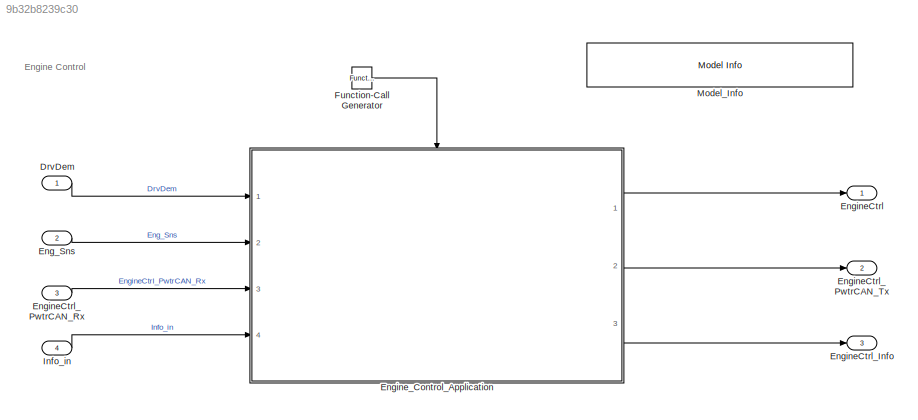
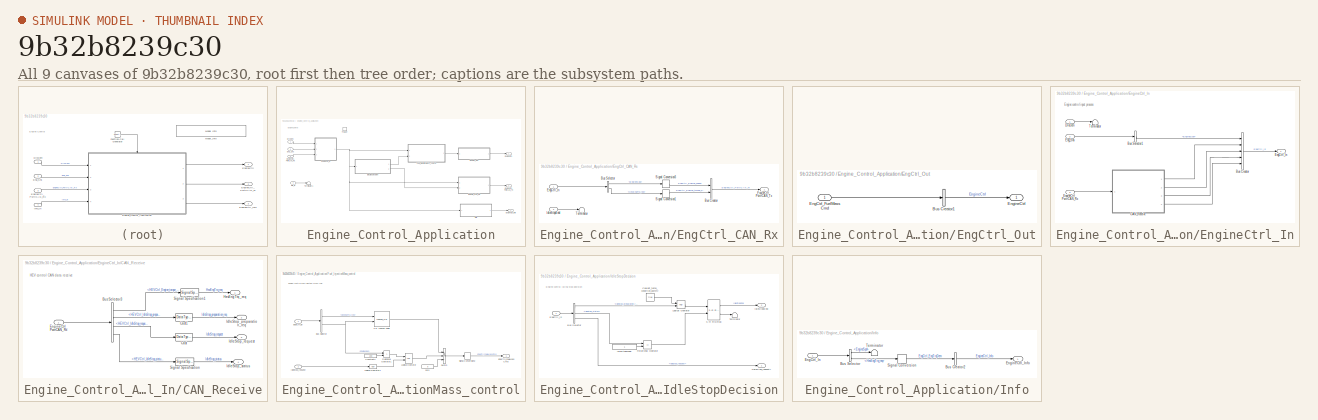
[diagram: thumbnail index - all 9 canvases of the model, root first then tree order]
MODEL slx_9b32b8239c30
KIND model
CONFIG PreLoadFcn = EngineCtrl_V1_BusInfo
BLOCK [Inport] DrvDem
  AttributesFormatString = %<OutDataTypeStr>
  IconDisplay = Port number
  OutDataTypeStr = Bus: Driver_demand_Bus
BLOCK [Inport] Eng_Sns
  AttributesFormatString = %<OutDataTypeStr>
  IconDisplay = Port number
  OutDataTypeStr = Bus: Engine_sensor_Bus
  Port = 2
BLOCK [Outport] EngineCtrl
  AttributesFormatString = <%<OutDataTypeStr>>
  IconDisplay = Port number
  OutDataTypeStr = Bus: EngineCtrl_Bus
BLOCK [Outport] EngineCtrl_Info
  AttributesFormatString = <%<OutDataTypeStr>>
  IconDisplay = Port number
  OutDataTypeStr = Bus: EngineCtrl_Info_Bus
  Port = 3
BLOCK [Inport] EngineCtrl_PwtrCAN_Rx
  AttributesFormatString = <%<OutDataTypeStr>>
  IconDisplay = Port number
  OutDataTypeStr = Bus: EngineCtrl_PwtrCAN_Rx_Bus
  Port = 3
BLOCK [Outport] EngineCtrl_PwtrCAN_Tx
  AttributesFormatString = <%<OutDataTypeStr>>
  IconDisplay = Port number
  OutDataTypeStr = Bus: EngineCtrl_PwtrCAN_Tx_Bus
  Port = 2
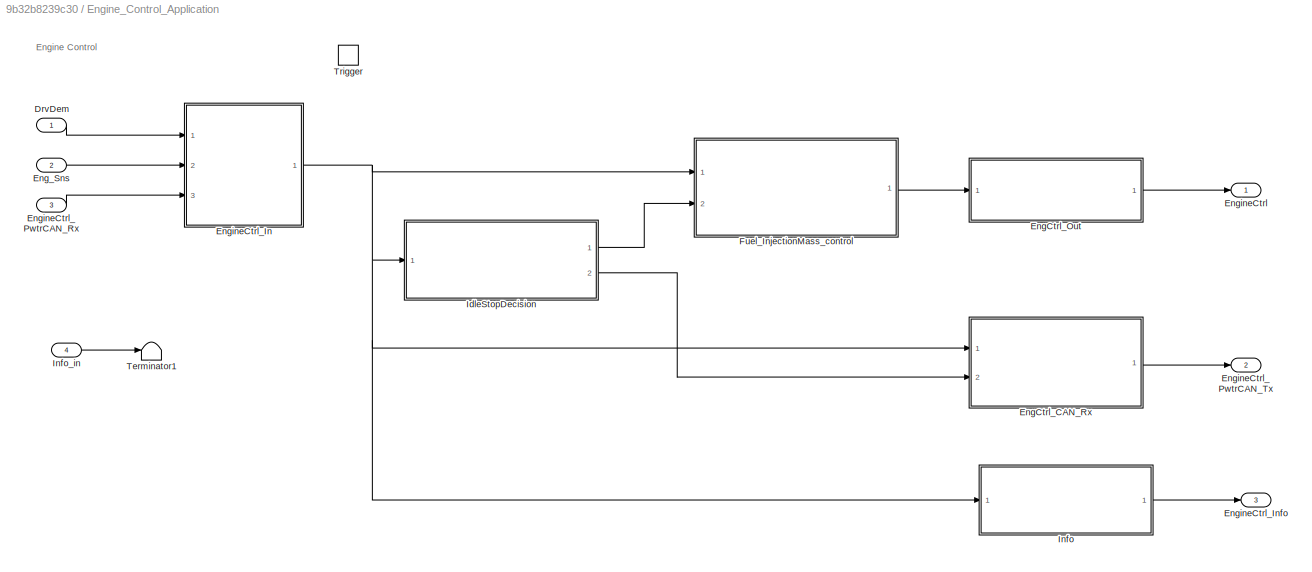
BLOCK [SubSystem] Engine_Control_Application
  Ports = [4, 3, 0, 1]
  RequestExecContextInheritance = off
BLOCK [Inport] Engine_Control_Application/DrvDem
  IconDisplay = Port number
BLOCK [SubSystem] Engine_Control_Application/EngCtrl_CAN_Rx
  Ports = [2, 1]
  RequestExecContextInheritance = off
BLOCK [BusCreator] Engine_Control_Application/EngCtrl_CAN_Rx/Bus Creator
  AttributesFormatString = %<OutDataTypeStr>
  DisplayOption = bar
  InheritFromInputs = on
  Inputs = 2
  OutDataTypeStr = Bus: EngineCtrl_PwtrCAN_Tx_Bus
  Ports = [2, 1]
BLOCK [BusSelector] Engine_Control_Application/EngCtrl_CAN_Rx/Bus Selector
  OutputAsBus = off
  OutputSignals = EngineSpd,HevEngTrq_req
  Ports = [1, 2]
BLOCK [Inport] Engine_Control_Application/EngCtrl_CAN_Rx/EngCtrl_In
  IconDisplay = Port number
BLOCK [Outport] Engine_Control_Application/EngCtrl_CAN_Rx/EngineCtrl_PwtrCAN_Tx
  IconDisplay = Port number
BLOCK [Inport] Engine_Control_Application/EngCtrl_CAN_Rx/IdleStopEnbl
  IconDisplay = Port number
  Port = 2
BLOCK [SignalConversion] Engine_Control_Application/EngCtrl_CAN_Rx/Signal Conversion1
  OverrideOpt = off
BLOCK [SignalConversion] Engine_Control_Application/EngCtrl_CAN_Rx/Signal Conversion3
  OverrideOpt = off
BLOCK [Terminator] Engine_Control_Application/EngCtrl_CAN_Rx/Terminator
BLOCK [SubSystem] Engine_Control_Application/EngCtrl_Out
  Ports = [1, 1]
  RequestExecContextInheritance = off
BLOCK [BusCreator] Engine_Control_Application/EngCtrl_Out/Bus Creator1
  AttributesFormatString = %<OutDataTypeStr>
  DisplayOption = bar
  InheritFromInputs = on
  Inputs = 1
  OutDataTypeStr = Bus: EngineCtrl_Bus
  Ports = [1, 1]
BLOCK [Inport] Engine_Control_Application/EngCtrl_Out/EngCtrl_FuelMassCmd
  IconDisplay = Port number
BLOCK [Outport] Engine_Control_Application/EngCtrl_Out/EngineCtrl
  IconDisplay = Port number
BLOCK [Inport] Engine_Control_Application/Eng_Sns
  IconDisplay = Port number
  Port = 2
BLOCK [Outport] Engine_Control_Application/EngineCtrl
  IconDisplay = Port number
BLOCK [SubSystem] Engine_Control_Application/EngineCtrl_In
  Ports = [3, 1]
  RequestExecContextInheritance = off
BLOCK [BusCreator] Engine_Control_Application/EngineCtrl_In/Bus Creator
  DisplayOption = bar
  InheritFromInputs = on
  Inputs = 5
  Ports = [5, 1]
BLOCK [BusSelector] Engine_Control_Application/EngineCtrl_In/Bus Selector1
  OutputAsBus = off
  OutputSignals = EngineSpd
  Ports = [1, 1]
BLOCK [SubSystem] Engine_Control_Application/EngineCtrl_In/CAN_Receive
  Ports = [1, 4]
  RequestExecContextInheritance = off
BLOCK [BusSelector] Engine_Control_Application/EngineCtrl_In/CAN_Receive/Bus Selector3
  OutputAsBus = off
  OutputSignals = HEVCtrl_Engine_torque_request,HEVCtrl_IdleStop_preparation_request,HEVCtrl_IdleStop_request,HEVCtrl_IdleStop_status
  Ports = [1, 4]
BLOCK [DataTypeConversion] Engine_Control_Application/EngineCtrl_In/CAN_Receive/Cast
  RndMeth = Floor
  SaturateOnIntegerOverflow = off
BLOCK [DataTypeConversion] Engine_Control_Application/EngineCtrl_In/CAN_Receive/Cast1
  RndMeth = Floor
  SaturateOnIntegerOverflow = off
BLOCK [Inport] Engine_Control_Application/EngineCtrl_In/CAN_Receive/EngineCtrl_PwtrCAN_Rx
  IconDisplay = Port number
BLOCK [Outport] Engine_Control_Application/EngineCtrl_In/CAN_Receive/HevEngTrq_req
  IconDisplay = Port number
BLOCK [Outport] Engine_Control_Application/EngineCtrl_In/CAN_Receive/IdleStop_preparation_req
  IconDisplay = Port number
  Port = 2
BLOCK [Outport] Engine_Control_Application/EngineCtrl_In/CAN_Receive/IdleStop_request
  IconDisplay = Port number
  Port = 3
BLOCK [Outport] Engine_Control_Application/EngineCtrl_In/CAN_Receive/IdleStop_status
  IconDisplay = Port number
  Port = 4
BLOCK [SignalSpecification] Engine_Control_Application/EngineCtrl_In/CAN_Receive/Signal Specification
BLOCK [SignalSpecification] Engine_Control_Application/EngineCtrl_In/CAN_Receive/Signal Specification1
BLOCK [Inport] Engine_Control_Application/EngineCtrl_In/DrvDem
  IconDisplay = Port number
BLOCK [Outport] Engine_Control_Application/EngineCtrl_In/EngCtrl_In
  IconDisplay = Port number
BLOCK [Inport] Engine_Control_Application/EngineCtrl_In/Eng_Sns
  IconDisplay = Port number
  Port = 2
BLOCK [Inport] Engine_Control_Application/EngineCtrl_In/EngineCtrl_PwtrCAN_Rx
  IconDisplay = Port number
  Port = 3
BLOCK [Terminator] Engine_Control_Application/EngineCtrl_In/Terminator
BLOCK [Outport] Engine_Control_Application/EngineCtrl_Info
  IconDisplay = Port number
  Port = 3
BLOCK [Inport] Engine_Control_Application/EngineCtrl_PwtrCAN_Rx
  IconDisplay = Port number
  Port = 3
BLOCK [Outport] Engine_Control_Application/EngineCtrl_PwtrCAN_Tx
  IconDisplay = Port number
  Port = 2
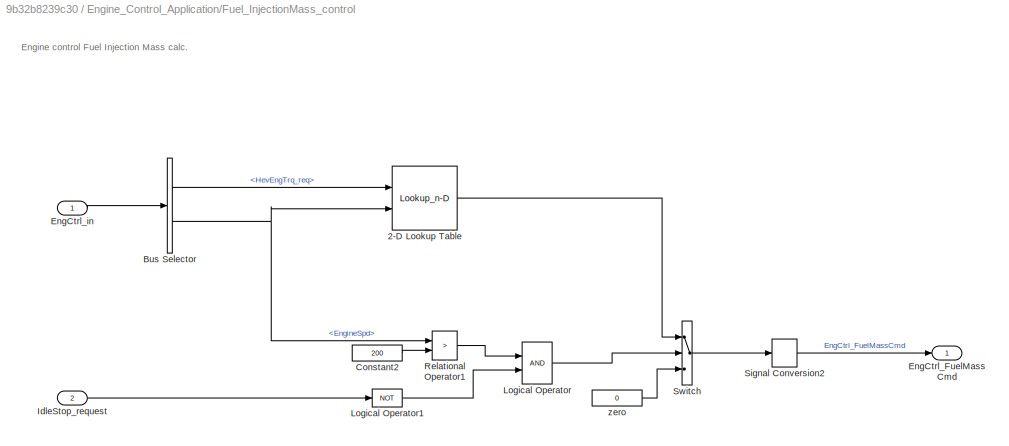
BLOCK [SubSystem] Engine_Control_Application/Fuel_InjectionMass_control
  Ports = [2, 1]
  RequestExecContextInheritance = off
BLOCK [Lookup_n-D] Engine_Control_Application/Fuel_InjectionMass_control/2-D Lookup Table
  BreakpointsForDimension1 = MassFuelCtrl_K3y
  BreakpointsForDimension2 = MassFuelCtrl_K3x
  InternalRulePriority = Speed
  Ports = [2, 1]
  RndMeth = Simplest
  Table = MassFuelCtrl_K3
BLOCK [BusSelector] Engine_Control_Application/Fuel_InjectionMass_control/Bus Selector
  OutputAsBus = off
  OutputSignals = HevEngTrq_req,EngineSpd
  Ports = [1, 2]
BLOCK [Constant] Engine_Control_Application/Fuel_InjectionMass_control/Constant2
  Value = 200
BLOCK [Outport] Engine_Control_Application/Fuel_InjectionMass_control/EngCtrl_FuelMassCmd
  IconDisplay = Port number
BLOCK [Inport] Engine_Control_Application/Fuel_InjectionMass_control/EngCtrl_in
  IconDisplay = Port number
BLOCK [Inport] Engine_Control_Application/Fuel_InjectionMass_control/IdleStop_request
  IconDisplay = Port number
  Port = 2
BLOCK [Logic] Engine_Control_Application/Fuel_InjectionMass_control/Logical Operator
  AllPortsSameDT = off
  OutDataTypeStr = boolean
  Ports = [2, 1]
BLOCK [Logic] Engine_Control_Application/Fuel_InjectionMass_control/Logical Operator1
  AllPortsSameDT = off
  Operator = NOT
  OutDataTypeStr = boolean
  Ports = [1, 1]
BLOCK [RelationalOperator] Engine_Control_Application/Fuel_InjectionMass_control/Relational Operator1
  InputSameDT = off
  Operator = >
  OutDataTypeStr = boolean
  Ports = [2, 1]
BLOCK [SignalConversion] Engine_Control_Application/Fuel_InjectionMass_control/Signal Conversion2
  OverrideOpt = off
BLOCK [Switch] Engine_Control_Application/Fuel_InjectionMass_control/Switch
  AttributesFormatString = <%<Criteria>>
  Criteria = u2 ~= 0
  InputSameDT = off
  Threshold = 0.5
BLOCK [Constant] Engine_Control_Application/Fuel_InjectionMass_control/zero
  Value = 0
BLOCK [SubSystem] Engine_Control_Application/IdleStopDecision
  Ports = [1, 2]
  RequestExecContextInheritance = off
BLOCK [Outport] Engine_Control_Application/IdleStopDecision/<IdleStop_request>
  IconDisplay = Port number
BLOCK [BusSelector] Engine_Control_Application/IdleStopDecision/Bus Selector
  OutputAsBus = off
  OutputSignals = IdleStop_preparation_req,IdleStop_status,IdleStop_request
  Ports = [1, 3]
BLOCK [Constant] Engine_Control_Application/IdleStopDecision/Coolant_temp_condition_dummy
  Value = true
BLOCK [Inport] Engine_Control_Application/IdleStopDecision/EngCtrl_in
  IconDisplay = Port number
BLOCK [Outport] Engine_Control_Application/IdleStopDecision/IdleStopEnbl
  IconDisplay = Port number
  Port = 2
BLOCK [Constant] Engine_Control_Application/IdleStopDecision/IdleStopMode
  SampleTime = -1
  VectorParams1D = off
BLOCK [Logic] Engine_Control_Application/IdleStopDecision/Logical Operator
  AllPortsSameDT = off
  OutDataTypeStr = boolean
  Ports = [2, 1]
BLOCK [RelationalOperator] Engine_Control_Application/IdleStopDecision/Relational Operator
  InputSameDT = off
  Operator = ==
  OutDataTypeStr = boolean
  Ports = [2, 1]
  RndMeth = Simplest
BLOCK [Reference] Engine_Control_Application/IdleStopDecision/S-R Flip-Flop  REF=simulink_extras/Flip Flops/S-R
Flip-Flop
  Ports = [2, 2]
  SourceBlock = simulink_extras/Flip Flops/S-R\nFlip-Flop
  SourceProductBaseCode = SL
  SourceProductName = Simulink
  SourceType = SRFlipFlop
BLOCK [Terminator] Engine_Control_Application/IdleStopDecision/Terminator
BLOCK [SubSystem] Engine_Control_Application/Info
  Ports = [1, 1]
  RequestExecContextInheritance = off
BLOCK [BusCreator] Engine_Control_Application/Info/Bus Creator2
  AttributesFormatString = %<OutDataTypeStr>
  DisplayOption = bar
  InheritFromInputs = on
  Inputs = 1
  OutDataTypeStr = Bus: EngineCtrl_Info_Bus
  Ports = [1, 1]
BLOCK [BusSelector] Engine_Control_Application/Info/Bus Selector
  OutputAsBus = off
  OutputSignals = EngineSpd,HevEngTrq_req
  Ports = [1, 2]
BLOCK [Inport] Engine_Control_Application/Info/EngCtrl_In
  IconDisplay = Port number
BLOCK [Outport] Engine_Control_Application/Info/EngineCtrl_Info
  IconDisplay = Port number
BLOCK [SignalConversion] Engine_Control_Application/Info/Signal Conversion
  OverrideOpt = off
BLOCK [Terminator] Engine_Control_Application/Info/Terminator
BLOCK [Inport] Engine_Control_Application/Info_in
  IconDisplay = Port number
  Port = 4
BLOCK [Terminator] Engine_Control_Application/Terminator1
BLOCK [TriggerPort] Engine_Control_Application/Trigger
  PortDimensions = 1
  Ports = []
  StatesWhenEnabling = held
  TriggerType = function-call
  VariantControl = Variant
BLOCK [Reference] Function-Call Generator  REF=simulink/Ports &
Subsystems/Function-Call
Generator
  AttributesFormatString = <sample_time=%<sample_time>>
  Ports = [0, 1]
  SourceBlock = simulink/Ports &\nSubsystems/Function-Call\nGenerator
  SourceProductBaseCode = SL
  SourceProductName = Simulink
  SourceType = Function-Call Generator
BLOCK [Inport] Info_in
  AttributesFormatString = %<OutDataTypeStr>
  IconDisplay = Port number
  OutDataTypeStr = Bus: EngineCtrl_Info_in_Bus
  Port = 4
BLOCK [Reference] Model_Info  REF=simulink/Model-Wide
Utilities/Model Info
  Ports = []
  SourceBlock = simulink/Model-Wide\nUtilities/Model Info
  SourceProductBaseCode = SL
  SourceProductName = Simulink
  SourceType = CMBlock
ANNOTATION (root): Engine Control
ANNOTATION Engine_Control_Application: Engine Control
ANNOTATION Engine_Control_Application/EngineCtrl_In: Engine contro linput process
ANNOTATION Engine_Control_Application/EngineCtrl_In/CAN_Receive: HEV control CAN data receive
ANNOTATION Engine_Control_Application/Fuel_InjectionMass_control: Engine control Fuel Injection Mass calc.
ANNOTATION Engine_Control_Application/IdleStopDecision: Engine control Idling stop decision
LINE DrvDem:1 -> Engine_Control_Application:1
LINE Eng_Sns:1 -> Engine_Control_Application:2
LINE EngineCtrl_PwtrCAN_Rx:1 -> Engine_Control_Application:3
LINE Engine_Control_Application/DrvDem:1 -> Engine_Control_Application/EngineCtrl_In:1
LINE Engine_Control_Application/EngCtrl_CAN_Rx/Bus Creator:1 -> Engine_Control_Application/EngCtrl_CAN_Rx/EngineCtrl_PwtrCAN_Tx:1
LINE Engine_Control_Application/EngCtrl_CAN_Rx/Bus Selector:1 -> Engine_Control_Application/EngCtrl_CAN_Rx/Signal Conversion3:1
LINE Engine_Control_Application/EngCtrl_CAN_Rx/Bus Selector:2 -> Engine_Control_Application/EngCtrl_CAN_Rx/Signal Conversion1:1
LINE Engine_Control_Application/EngCtrl_CAN_Rx/EngCtrl_In:1 -> Engine_Control_Application/EngCtrl_CAN_Rx/Bus Selector:1
LINE Engine_Control_Application/EngCtrl_CAN_Rx/IdleStopEnbl:1 -> Engine_Control_Application/EngCtrl_CAN_Rx/Terminator:1
LINE Engine_Control_Application/EngCtrl_CAN_Rx/Signal Conversion1:1 -> Engine_Control_Application/EngCtrl_CAN_Rx/Bus Creator:2
LINE Engine_Control_Application/EngCtrl_CAN_Rx/Signal Conversion3:1 -> Engine_Control_Application/EngCtrl_CAN_Rx/Bus Creator:1
LINE Engine_Control_Application/EngCtrl_CAN_Rx:1 -> Engine_Control_Application/EngineCtrl_PwtrCAN_Tx:1
LINE Engine_Control_Application/EngCtrl_Out/Bus Creator1:1 -> Engine_Control_Application/EngCtrl_Out/EngineCtrl:1
LINE Engine_Control_Application/EngCtrl_Out/EngCtrl_FuelMassCmd:1 -> Engine_Control_Application/EngCtrl_Out/Bus Creator1:1
LINE Engine_Control_Application/EngCtrl_Out:1 -> Engine_Control_Application/EngineCtrl:1
LINE Engine_Control_Application/Eng_Sns:1 -> Engine_Control_Application/EngineCtrl_In:2
LINE Engine_Control_Application/EngineCtrl_In/Bus Creator:1 -> Engine_Control_Application/EngineCtrl_In/EngCtrl_In:1
LINE Engine_Control_Application/EngineCtrl_In/Bus Selector1:1 -> Engine_Control_Application/EngineCtrl_In/Bus Creator:1
LINE Engine_Control_Application/EngineCtrl_In/CAN_Receive/Bus Selector3:1 -> Engine_Control_Application/EngineCtrl_In/CAN_Receive/Signal Specification1:1
LINE Engine_Control_Application/EngineCtrl_In/CAN_Receive/Bus Selector3:2 -> Engine_Control_Application/EngineCtrl_In/CAN_Receive/Cast1:1
LINE Engine_Control_Application/EngineCtrl_In/CAN_Receive/Bus Selector3:3 -> Engine_Control_Application/EngineCtrl_In/CAN_Receive/Cast:1
LINE Engine_Control_Application/EngineCtrl_In/CAN_Receive/Bus Selector3:4 -> Engine_Control_Application/EngineCtrl_In/CAN_Receive/Signal Specification:1
LINE Engine_Control_Application/EngineCtrl_In/CAN_Receive/Cast1:1 -> Engine_Control_Application/EngineCtrl_In/CAN_Receive/IdleStop_preparation_req:1
LINE Engine_Control_Application/EngineCtrl_In/CAN_Receive/Cast:1 -> Engine_Control_Application/EngineCtrl_In/CAN_Receive/IdleStop_request:1
LINE Engine_Control_Application/EngineCtrl_In/CAN_Receive/EngineCtrl_PwtrCAN_Rx:1 -> Engine_Control_Application/EngineCtrl_In/CAN_Receive/Bus Selector3:1
LINE Engine_Control_Application/EngineCtrl_In/CAN_Receive/Signal Specification1:1 -> Engine_Control_Application/EngineCtrl_In/CAN_Receive/HevEngTrq_req:1
LINE Engine_Control_Application/EngineCtrl_In/CAN_Receive/Signal Specification:1 -> Engine_Control_Application/EngineCtrl_In/CAN_Receive/IdleStop_status:1
LINE Engine_Control_Application/EngineCtrl_In/CAN_Receive:1 -> Engine_Control_Application/EngineCtrl_In/Bus Creator:2
LINE Engine_Control_Application/EngineCtrl_In/CAN_Receive:2 -> Engine_Control_Application/EngineCtrl_In/Bus Creator:3
LINE Engine_Control_Application/EngineCtrl_In/CAN_Receive:3 -> Engine_Control_Application/EngineCtrl_In/Bus Creator:4
LINE Engine_Control_Application/EngineCtrl_In/CAN_Receive:4 -> Engine_Control_Application/EngineCtrl_In/Bus Creator:5
LINE Engine_Control_Application/EngineCtrl_In/DrvDem:1 -> Engine_Control_Application/EngineCtrl_In/Terminator:1
LINE Engine_Control_Application/EngineCtrl_In/Eng_Sns:1 -> Engine_Control_Application/EngineCtrl_In/Bus Selector1:1
LINE Engine_Control_Application/EngineCtrl_In/EngineCtrl_PwtrCAN_Rx:1 -> Engine_Control_Application/EngineCtrl_In/CAN_Receive:1
NET Engine_Control_Application/EngineCtrl_In:1 -> Engine_Control_Application/EngCtrl_CAN_Rx:1, Engine_Control_Application/Fuel_InjectionMass_control:1, Engine_Control_Application/IdleStopDecision:1, Engine_Control_Application/Info:1
LINE Engine_Control_Application/EngineCtrl_PwtrCAN_Rx:1 -> Engine_Control_Application/EngineCtrl_In:3
LINE Engine_Control_Application/Fuel_InjectionMass_control/2-D Lookup Table:1 -> Engine_Control_Application/Fuel_InjectionMass_control/Switch:1
LINE Engine_Control_Application/Fuel_InjectionMass_control/Bus Selector:1 -> Engine_Control_Application/Fuel_InjectionMass_control/2-D Lookup Table:1
NET Engine_Control_Application/Fuel_InjectionMass_control/Bus Selector:2 -> Engine_Control_Application/Fuel_InjectionMass_control/2-D Lookup Table:2, Engine_Control_Application/Fuel_InjectionMass_control/Relational Operator1:1
LINE Engine_Control_Application/Fuel_InjectionMass_control/Constant2:1 -> Engine_Control_Application/Fuel_InjectionMass_control/Relational Operator1:2
LINE Engine_Control_Application/Fuel_InjectionMass_control/EngCtrl_in:1 -> Engine_Control_Application/Fuel_InjectionMass_control/Bus Selector:1
LINE Engine_Control_Application/Fuel_InjectionMass_control/IdleStop_request:1 -> Engine_Control_Application/Fuel_InjectionMass_control/Logical Operator1:1
LINE Engine_Control_Application/Fuel_InjectionMass_control/Logical Operator1:1 -> Engine_Control_Application/Fuel_InjectionMass_control/Logical Operator:2
LINE Engine_Control_Application/Fuel_InjectionMass_control/Logical Operator:1 -> Engine_Control_Application/Fuel_InjectionMass_control/Switch:2
LINE Engine_Control_Application/Fuel_InjectionMass_control/Relational Operator1:1 -> Engine_Control_Application/Fuel_InjectionMass_control/Logical Operator:1
LINE Engine_Control_Application/Fuel_InjectionMass_control/Signal Conversion2:1 -> Engine_Control_Application/Fuel_InjectionMass_control/EngCtrl_FuelMassCmd:1
LINE Engine_Control_Application/Fuel_InjectionMass_control/Switch:1 -> Engine_Control_Application/Fuel_InjectionMass_control/Signal Conversion2:1
LINE Engine_Control_Application/Fuel_InjectionMass_control/zero:1 -> Engine_Control_Application/Fuel_InjectionMass_control/Switch:3
LINE Engine_Control_Application/Fuel_InjectionMass_control:1 -> Engine_Control_Application/EngCtrl_Out:1
LINE Engine_Control_Application/IdleStopDecision/Bus Selector:1 -> Engine_Control_Application/IdleStopDecision/Logical Operator:2
LINE Engine_Control_Application/IdleStopDecision/Bus Selector:2 -> Engine_Control_Application/IdleStopDecision/Relational Operator:1
LINE Engine_Control_Application/IdleStopDecision/Bus Selector:3 -> Engine_Control_Application/IdleStopDecision/<IdleStop_request>:1
LINE Engine_Control_Application/IdleStopDecision/Coolant_temp_condition_dummy:1 -> Engine_Control_Application/IdleStopDecision/Logical Operator:1
LINE Engine_Control_Application/IdleStopDecision/EngCtrl_in:1 -> Engine_Control_Application/IdleStopDecision/Bus Selector:1
LINE Engine_Control_Application/IdleStopDecision/IdleStopMode:1 -> Engine_Control_Application/IdleStopDecision/Relational Operator:2
LINE Engine_Control_Application/IdleStopDecision/Logical Operator:1 -> Engine_Control_Application/IdleStopDecision/S-R Flip-Flop:1
LINE Engine_Control_Application/IdleStopDecision/Relational Operator:1 -> Engine_Control_Application/IdleStopDecision/S-R Flip-Flop:2
LINE Engine_Control_Application/IdleStopDecision/S-R Flip-Flop:1 -> Engine_Control_Application/IdleStopDecision/IdleStopEnbl:1
LINE Engine_Control_Application/IdleStopDecision/S-R Flip-Flop:2 -> Engine_Control_Application/IdleStopDecision/Terminator:1
LINE Engine_Control_Application/IdleStopDecision:1 -> Engine_Control_Application/Fuel_InjectionMass_control:2
LINE Engine_Control_Application/IdleStopDecision:2 -> Engine_Control_Application/EngCtrl_CAN_Rx:2
LINE Engine_Control_Application/Info/Bus Creator2:1 -> Engine_Control_Application/Info/EngineCtrl_Info:1
LINE Engine_Control_Application/Info/Bus Selector:1 -> Engine_Control_Application/Info/Terminator:1
LINE Engine_Control_Application/Info/Bus Selector:2 -> Engine_Control_Application/Info/Signal Conversion:1
LINE Engine_Control_Application/Info/EngCtrl_In:1 -> Engine_Control_Application/Info/Bus Selector:1
LINE Engine_Control_Application/Info/Signal Conversion:1 -> Engine_Control_Application/Info/Bus Creator2:1
LINE Engine_Control_Application/Info:1 -> Engine_Control_Application/EngineCtrl_Info:1
LINE Engine_Control_Application/Info_in:1 -> Engine_Control_Application/Terminator1:1
LINE Engine_Control_Application:1 -> EngineCtrl:1
LINE Engine_Control_Application:2 -> EngineCtrl_PwtrCAN_Tx:1
LINE Engine_Control_Application:3 -> EngineCtrl_Info:1
LINE Function-Call Generator:1 -> Engine_Control_Application:trigger
LINE Info_in:1 -> Engine_Control_Application:4
note: NET lines group one-source signal fan-out (src -> all destinations, sorted); 1:1 wires keep LINE
